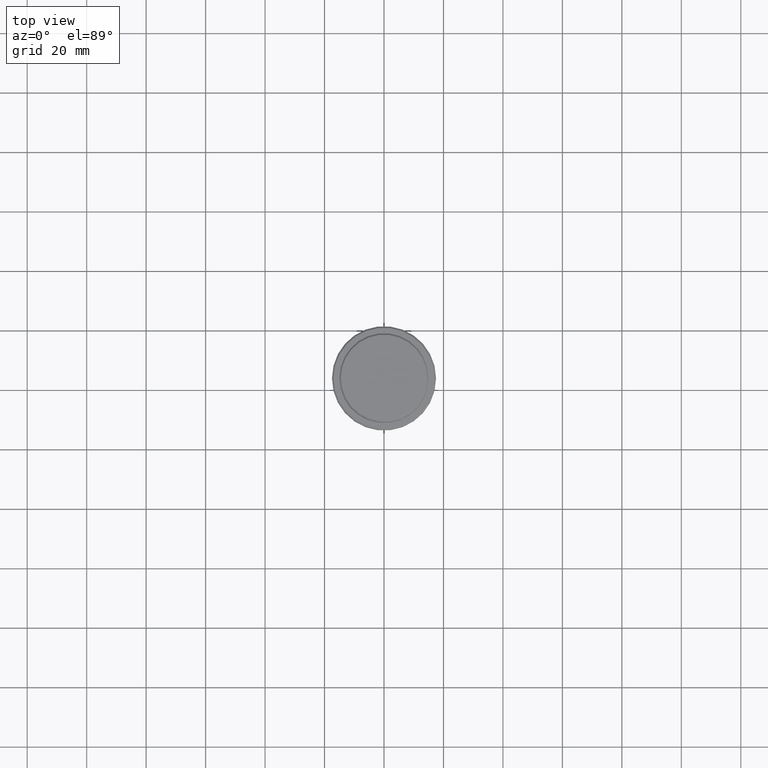
[diagram: clean part render]
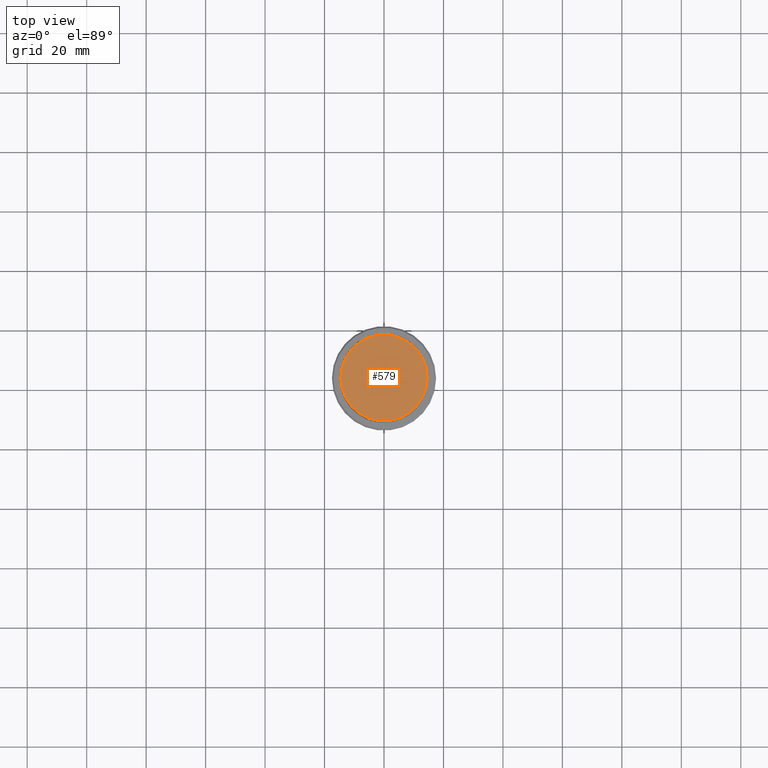
[diagram: same view with one face highlighted and labeled with its STEP entity id]
A machine part, top view. The second image highlights one B-rep face of the part: STEP entity #579.
In plain terms, the highlighted planar face has unit normal (0, -0, 1).
Its self-contained STEP definition (entity closure, byte-faithful):
#28 = CARTESIAN_POINT ( 'NONE',  ( 0.000000000000000000, 0.000000000000000000, 0.000000000000000000 ) ) ;
#180 = DIRECTION ( 'NONE',  ( 1.000000000000000000, 0.000000000000000000, 0.000000000000000000 ) ) ;
#213 = AXIS2_PLACEMENT_3D ( 'NONE', #390, #843, #180 ) ;
#235 = CARTESIAN_POINT ( 'NONE',  ( 0.000000000000000000, 0.000000000000000000, 0.000000000000000000 ) ) ;
#371 = VERTEX_POINT ( 'NONE', #537 ) ;
#390 = CARTESIAN_POINT ( 'NONE',  ( 0.000000000000000000, 0.000000000000000000, 0.000000000000000000 ) ) ;
#466 = DIRECTION ( 'NONE',  ( -0.000000000000000000, -0.000000000000000000, 1.000000000000000000 ) ) ;
#484 = FACE_OUTER_BOUND ( 'NONE', #1215, .T. ) ;
#533 = AXIS2_PLACEMENT_3D ( 'NONE', #28, #466, #795 ) ;
#537 = CARTESIAN_POINT ( 'NONE',  ( -14.49999999999995559, 0.000000000000000000, 0.000000000000000000 ) ) ;
#556 = DIRECTION ( 'NONE',  ( -0.000000000000000000, -0.000000000000000000, 1.000000000000000000 ) ) ;
#559 = VERTEX_POINT ( 'NONE', #815 ) ;
#579 = ADVANCED_FACE ( 'NONE', ( #484 ), #826, .T. ) ;
#795 = DIRECTION ( 'NONE',  ( 1.000000000000000000, 0.000000000000000000, 0.000000000000000000 ) ) ;
#815 = CARTESIAN_POINT ( 'NONE',  ( 14.49999999999995559, 1.806354028742343041E-15, 0.000000000000000000 ) ) ;
#826 = PLANE ( 'NONE',  #213 ) ;
#843 = DIRECTION ( 'NONE',  ( 0.000000000000000000, -0.000000000000000000, 1.000000000000000000 ) ) ;
#864 = ORIENTED_EDGE ( 'NONE', *, *, #1331, .T. ) ;
#952 = CIRCLE ( 'NONE', #533, 14.49999999999995559 ) ;
#1014 = DIRECTION ( 'NONE',  ( 1.000000000000000000, 0.000000000000000000, 0.000000000000000000 ) ) ;
#1125 = AXIS2_PLACEMENT_3D ( 'NONE', #235, #556, #1014 ) ;
#1148 = ORIENTED_EDGE ( 'NONE', *, *, #1325, .T. ) ;
#1215 = EDGE_LOOP ( 'NONE', ( #864, #1148 ) ) ;
#1325 = EDGE_CURVE ( 'NONE', #559, #371, #1327, .T. ) ;
#1327 = CIRCLE ( 'NONE', #1125, 14.49999999999995559 ) ;
#1331 = EDGE_CURVE ( 'NONE', #371, #559, #952, .T. ) ;